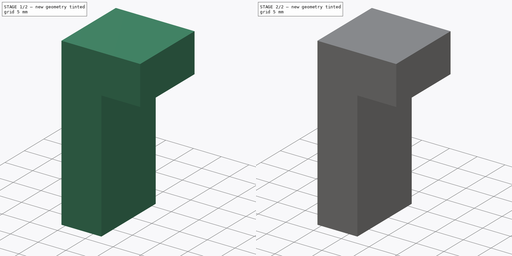
[diagram: build sequence overview — one tinted view per stage of 2, left to right]
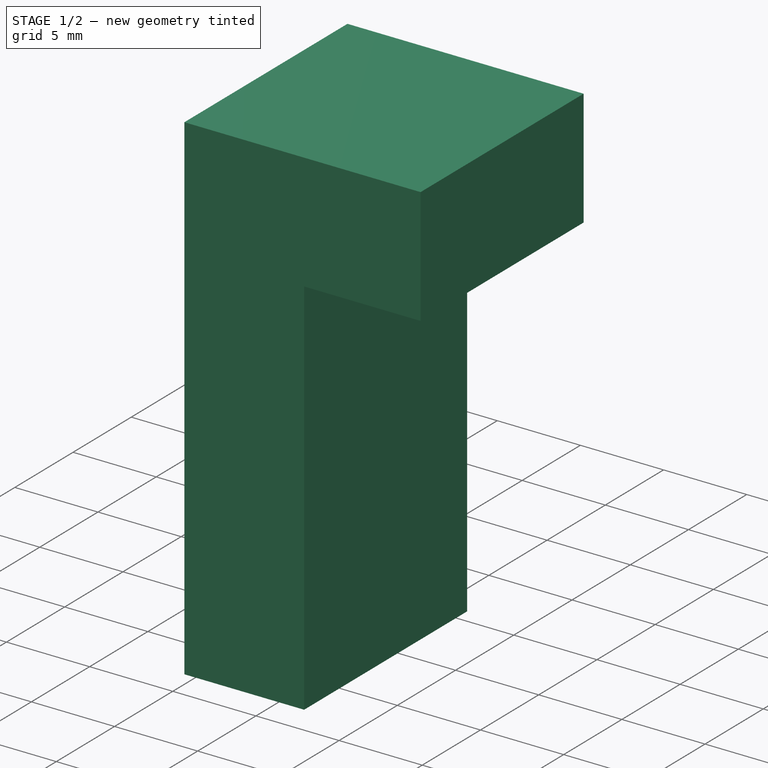
[diagram: stage 1 of 2 — iso view after this stage's code; geometry added in this stage tinted green]
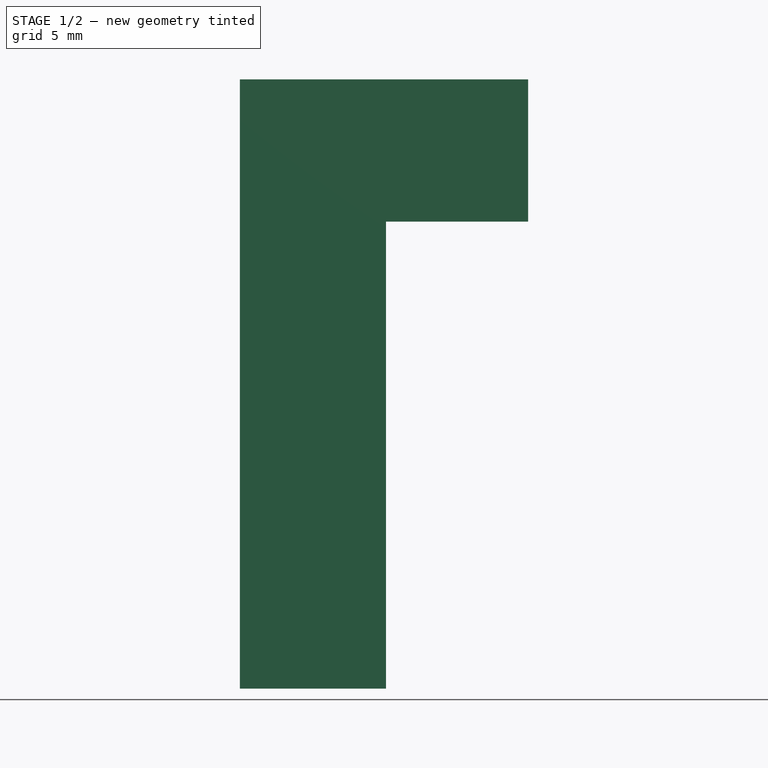
[diagram: stage 1 of 2 — front view after this stage's code; geometry added in this stage tinted green]
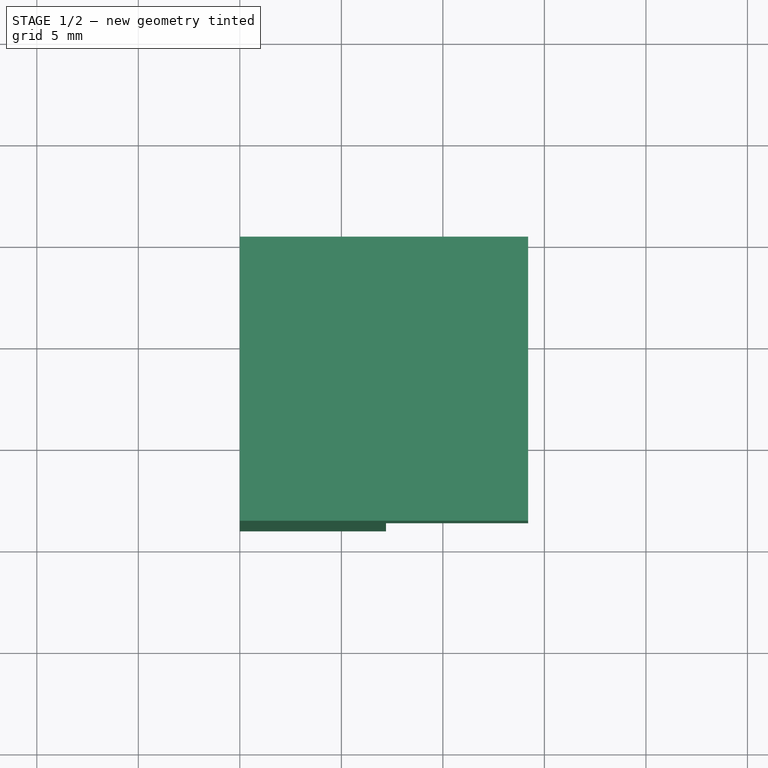
[diagram: stage 1 of 2 — top view after this stage's code; geometry added in this stage tinted green]
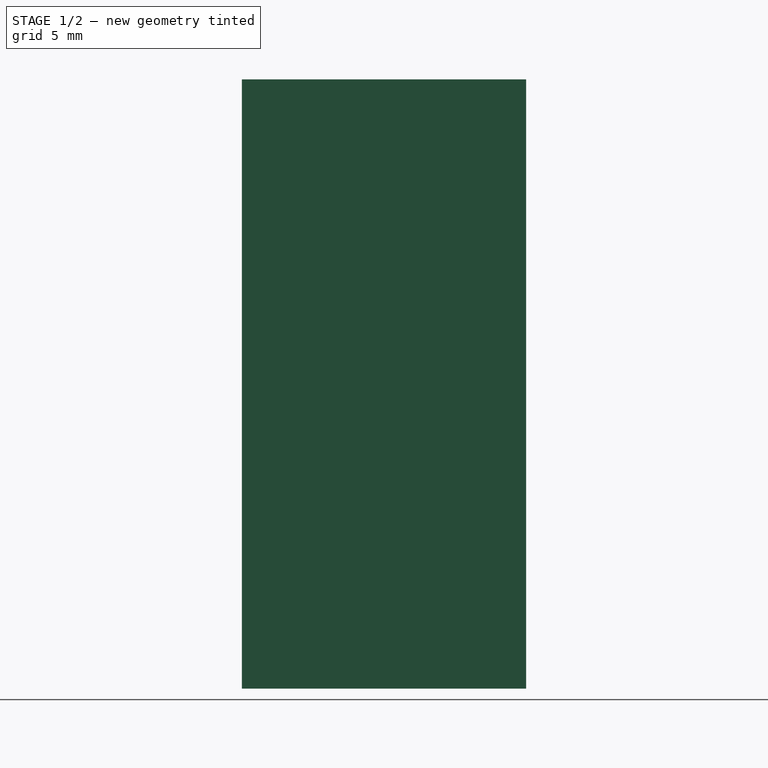
[diagram: stage 1 of 2 — right view after this stage's code; geometry added in this stage tinted green]
FCSTD DOCUMENT  (FreeCAD 0.16R6712 (Git))
Label: tekening van z axis blah
License: All rights reserved
LicenseURL: http://en.wikipedia.org/wiki/All_rights_reserved
objects: Sketcher::SketchObject×2, PartDesign::Pad×1, PartDesign::Pocket×1
note: 6 computed .brp shape members not serialized (recipe doc carries the construction recipe); baked Part::Feature solids carry a one-line shape summary decoded from their .brp

FEATURE [Sketcher::SketchObject] Sketch
  Placement = pos=(0,0,0) rot=(-1,0,0;4.71239rad)
  sketch-geometry (8):
    g0: LineSegment StartX=0 StartY=30 StartZ=0 EndX=14.2 EndY=30 EndZ=0
    g1: LineSegment StartX=14.2 StartY=30 StartZ=0 EndX=14.2 EndY=23 EndZ=0
    g2: LineSegment StartX=14.2 StartY=23 StartZ=0 EndX=7.2 EndY=23 EndZ=0
    g3: LineSegment StartX=7.2 StartY=23 StartZ=0 EndX=7.2 EndY=0 EndZ=0
    g4: LineSegment StartX=0 StartY=0 StartZ=0 EndX=0 EndY=30 EndZ=0
    g5: LineSegment StartX=7.2 StartY=0 StartZ=0 EndX=5.7 EndY=0 EndZ=0
    g6: LineSegment StartX=1.5 StartY=0 StartZ=0 EndX=5.7 EndY=0 EndZ=0
    g7: LineSegment StartX=1.5 StartY=0 StartZ=0 EndX=0 EndY=0 EndZ=0
  constraints (23):
    c: Horizontal(g0)
    c: Coincident(g0,g1)
    c: Vertical(g1)
    c: Coincident(g1,g2)
    c: Horizontal(g2)
    c: Coincident(g2,g3)
    c: Vertical(g3)
    c: Coincident(g4,g0)
    c: Vertical(g4)
    c: Coincident(g5,g3)
    c: Coincident(g6,g5)
    c: Coincident(g7,g6)
    c: Coincident(g7,g4)
    c: Horizontal(g7)
    c: Horizontal(g6)
    c: Horizontal(g5)
    c: Coincident(g4,g-1)
    c: DistanceX(g6,g6) = 4.2
    c: DistanceX(g7,g7) = 1.5
    c: Equal(g5,g7)
    c: DistanceY(g4,g4) = 30
    c: DistanceX(g2,g2) = 7
    c: Equal(g1,g2)
FEATURE [PartDesign::Pad] Pad
  Length = 14
  Length2 = 100
  Placement = pos=(0,0,0) rot=(-1,0,0;4.71239rad)
  Sketch = -> Sketch
  Type = 0
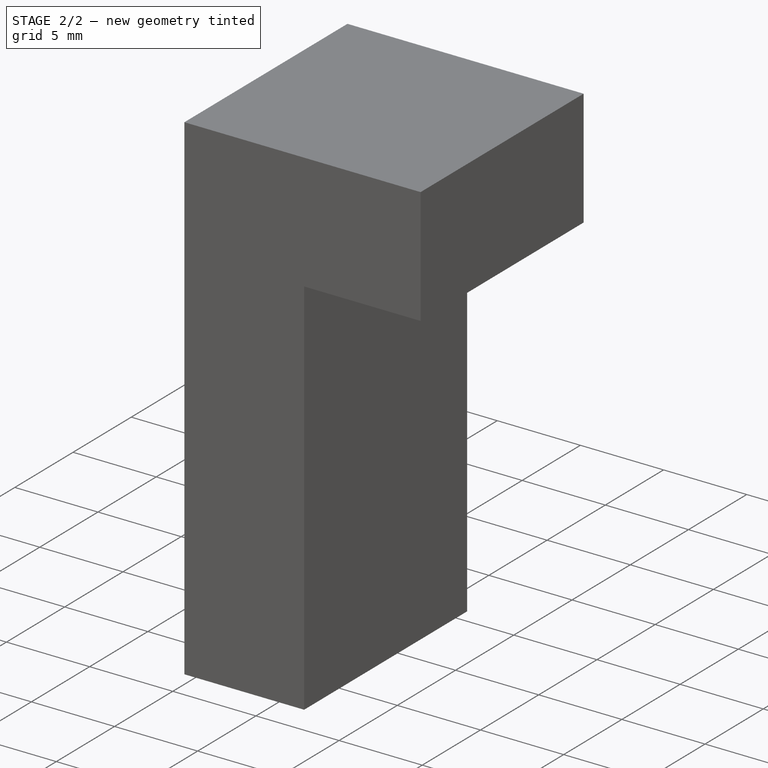
[diagram: stage 2 of 2 — iso view after this stage's code; geometry added in this stage tinted green]
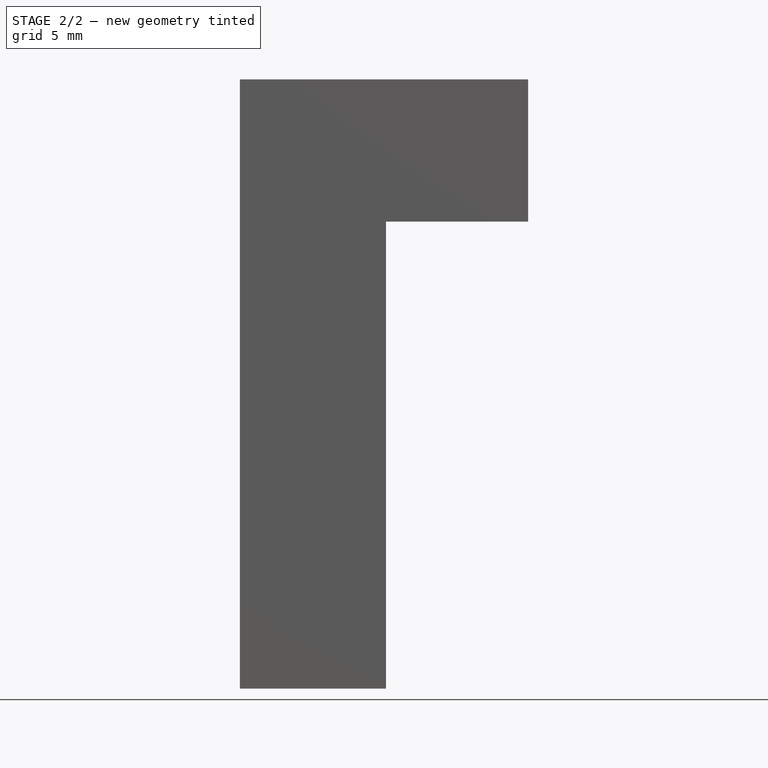
[diagram: stage 2 of 2 — front view after this stage's code; geometry added in this stage tinted green]
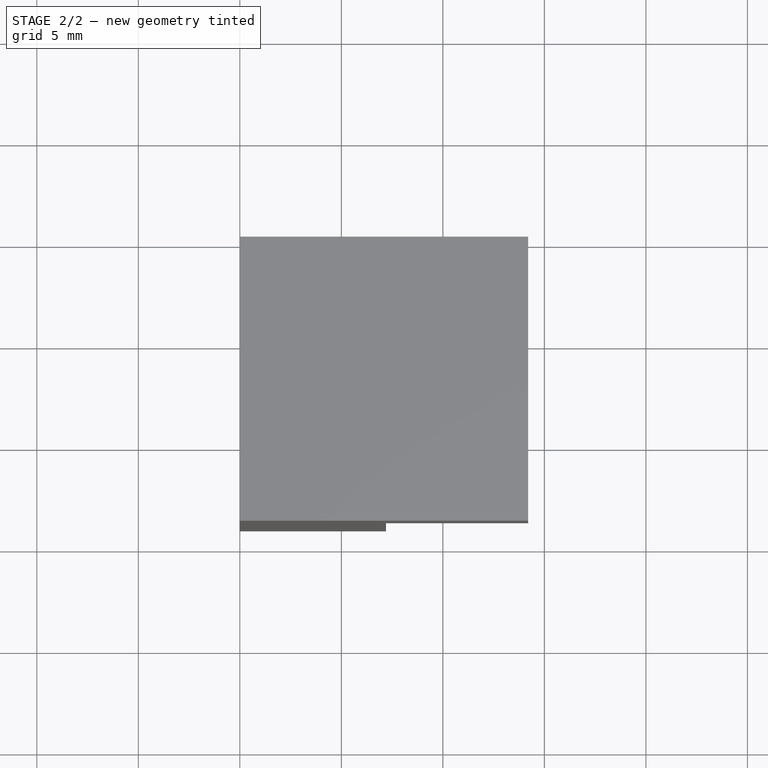
[diagram: stage 2 of 2 — top view after this stage's code; geometry added in this stage tinted green]
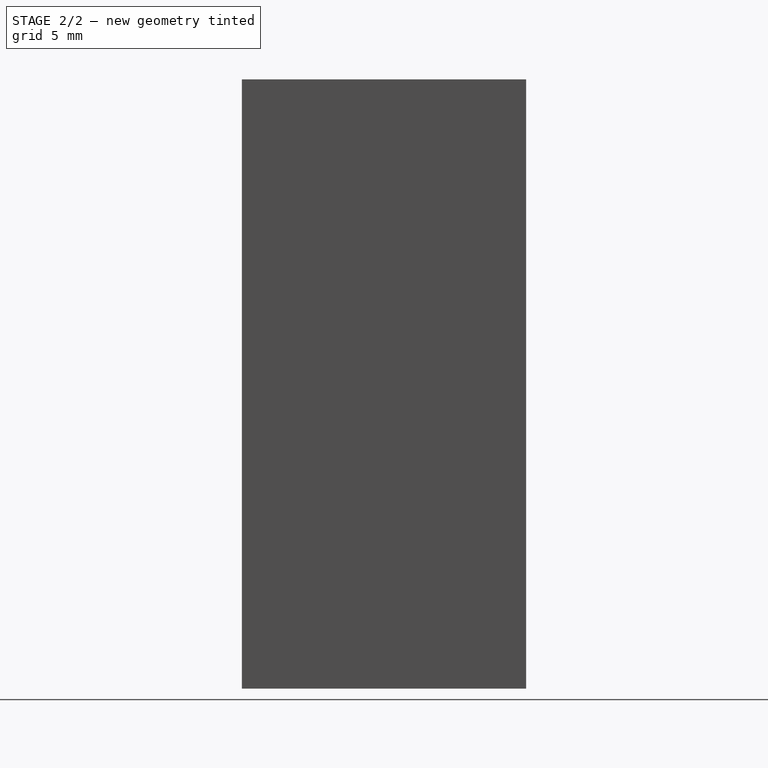
[diagram: stage 2 of 2 — right view after this stage's code; geometry added in this stage tinted green]
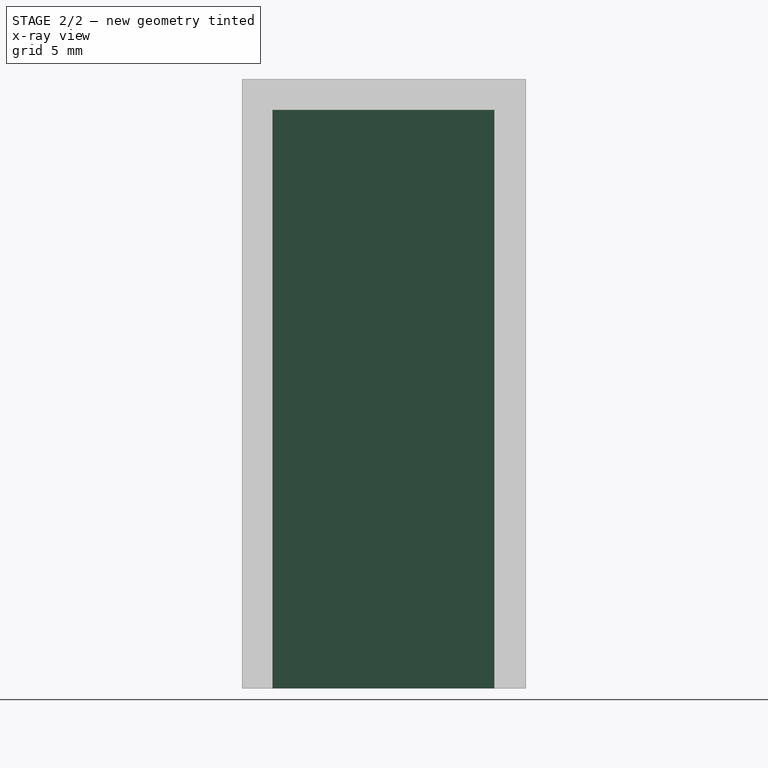
[diagram: stage 2 of 2 — x-ray composite at the right view; earlier geometry ghosted, this stage's added geometry solid]
FEATURE [Sketcher::SketchObject] Sketch001
  ExternalGeometry = -> [Pad]
  Placement = pos=(0,0,0) rot=(1,0,0;3.14159rad)
  Support = -> Pad [Face6]
  sketch-geometry (5):
    g0: LineSegment StartX=1.5 StartY=12.5 StartZ=0 EndX=5.7 EndY=12.5 EndZ=0
    g1: LineSegment StartX=5.7 StartY=12.5 StartZ=0 EndX=5.7 EndY=1.56248 EndZ=0
    g2: LineSegment StartX=5.7 StartY=1.56248 StartZ=0 EndX=1.5 EndY=1.56248 EndZ=0
    g3: LineSegment StartX=1.5 StartY=1.56248 StartZ=0 EndX=1.5 EndY=12.5 EndZ=0
    g4: LineSegment [constr] StartX=5.7 StartY=12.5 StartZ=0 EndX=5.7 EndY=14 EndZ=0
  constraints (15):
    c: Coincident(g0,g1)
    c: Coincident(g1,g2)
    c: Coincident(g2,g3)
    c: Coincident(g3,g0)
    c: Horizontal(g0)
    c: Horizontal(g2)
    c: Vertical(g1)
    c: Vertical(g3)
    c: PointOnObject(g0,g-3)
    c: PointOnObject(g1,g-4)
    c: Vertical(g4)
    c: Coincident(g4,g-4)
    c: Coincident(g4,g0)
    c: DistanceY(g4,g4) = 1.5
    c: Equal(g0,g2)
FEATURE [PartDesign::Pocket] Pocket
  Length = 28.5
  Placement = pos=(0,0,0) rot=(-1,0,0;4.71239rad)
  Sketch = -> Sketch001
  Type = 0
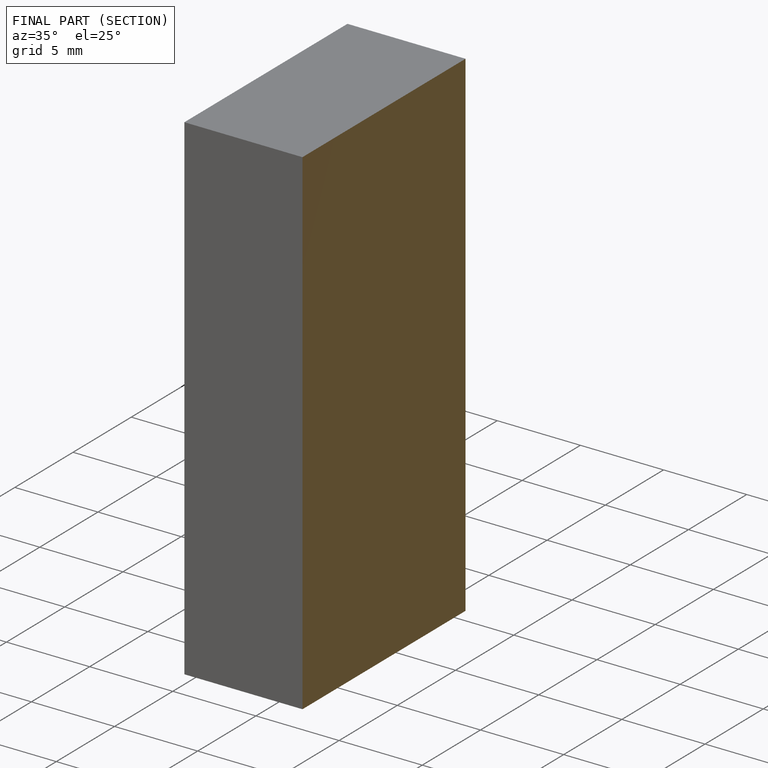
[diagram: finished part — half-section view (interior)]
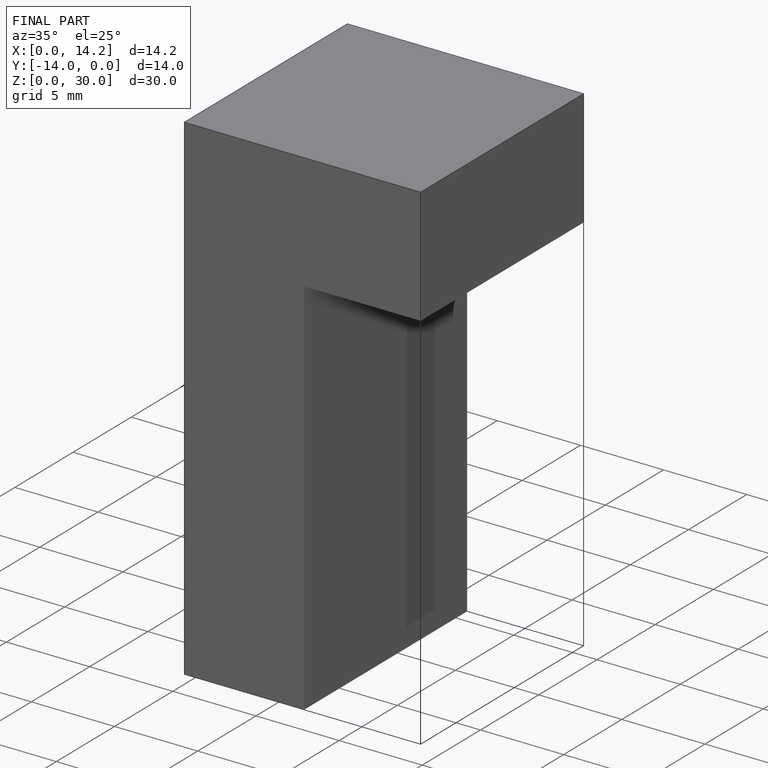
[diagram: finished part — iso view with bounding-box wireframe]
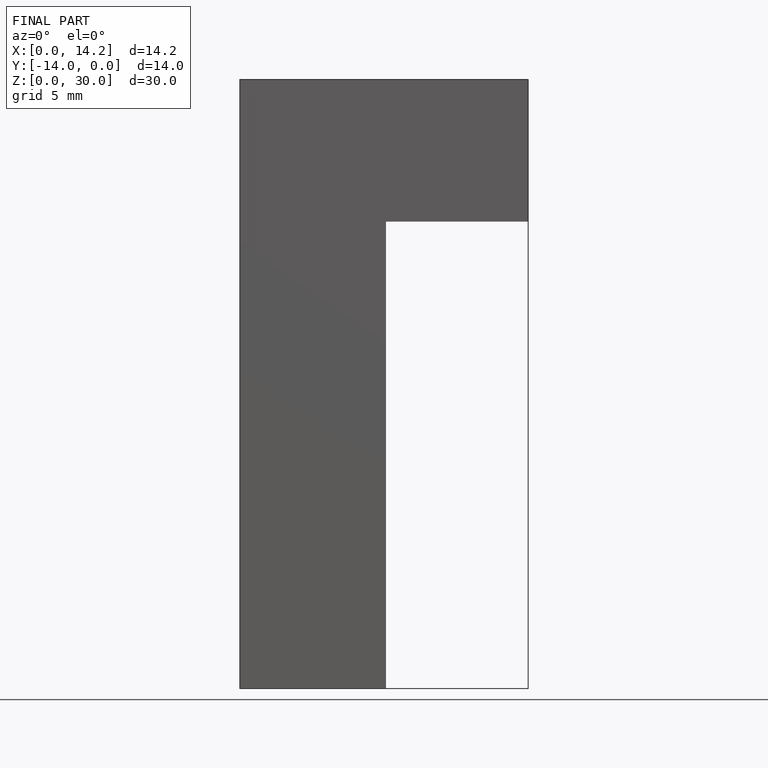
[diagram: finished part — front view with bounding-box wireframe]
